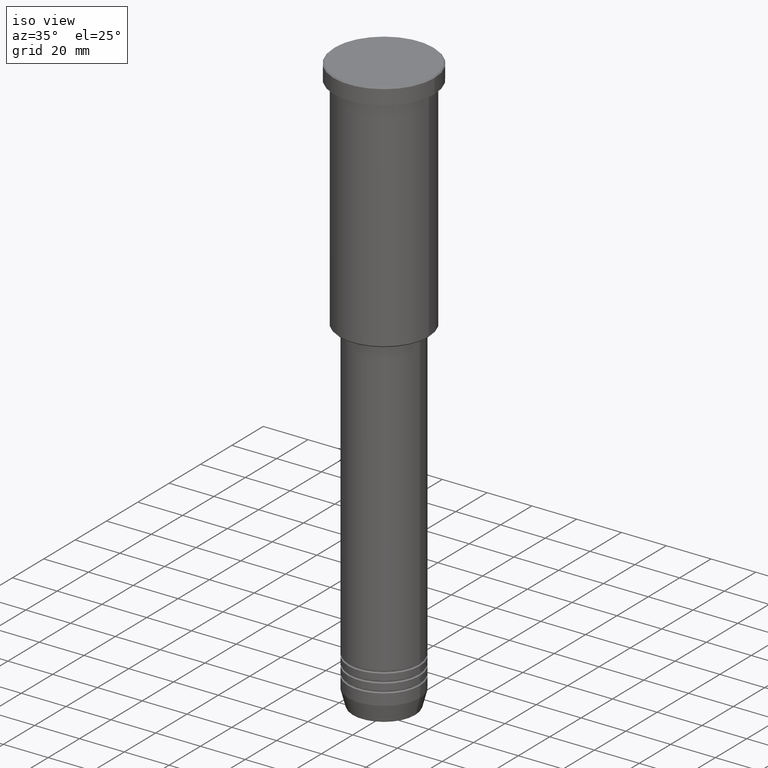
[diagram: clean part render]
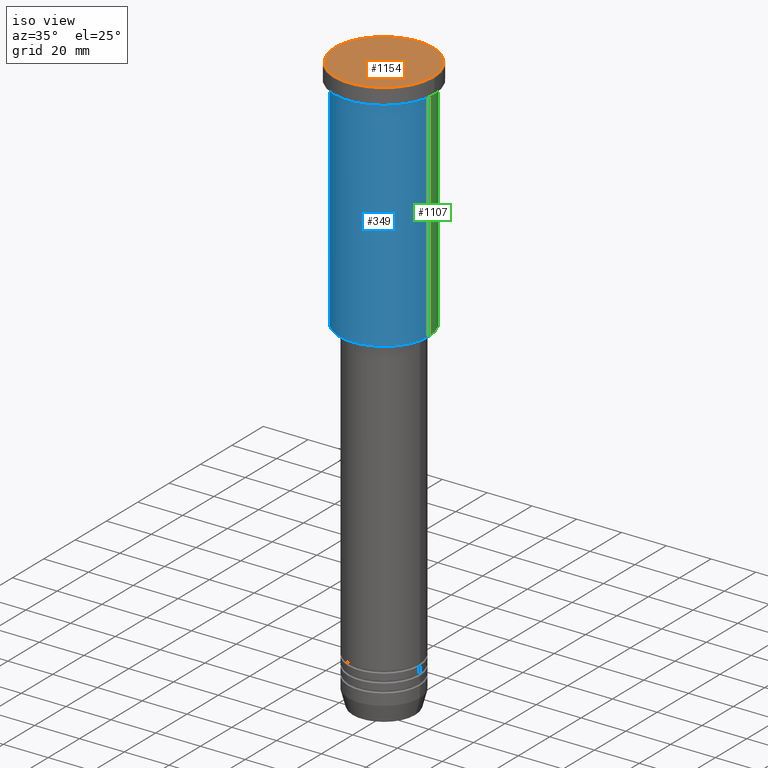
[diagram: same view with three faces highlighted in distinct colors, each labeled with its STEP entity id]
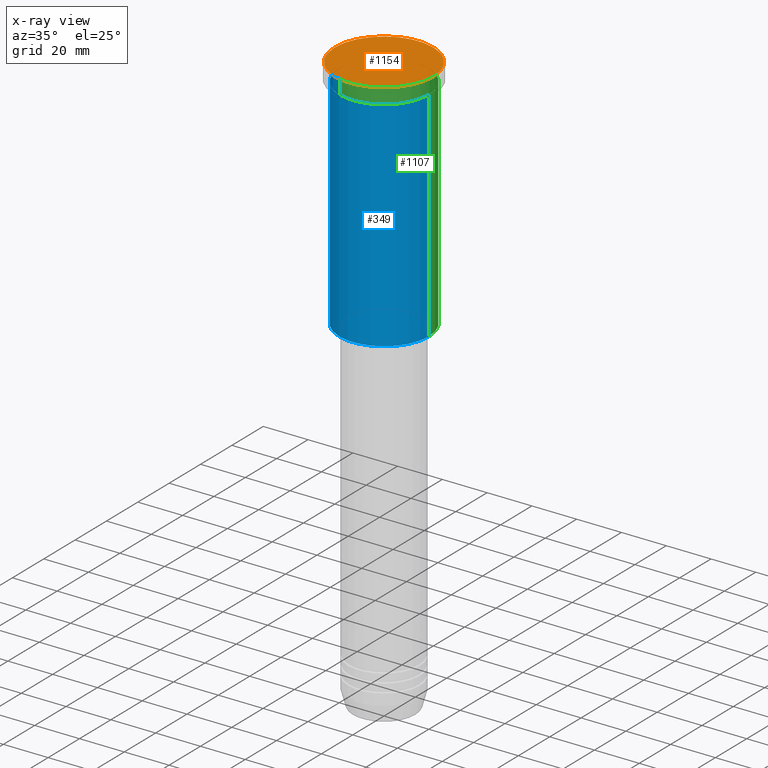
[diagram: x-ray of the same camera — body ghosted, the three highlighted faces saturated]
A machine part, iso view with three faces highlighted in distinct colors.
The next image is the same camera in x-ray (body ghosted, the three faces saturated) — at least one of them is partly hidden behind the body in this view.
Their STEP definitions:

[orange] entity #1154 — the highlighted planar face has unit normal (0, -0, 1).
#1 = CARTESIAN_POINT ( 'NONE',  ( -21.99999999999990763, 0.000000000000000000, 0.000000000000000000 ) ) ;
#5 = EDGE_CURVE ( 'NONE', #1167, #691, #825, .T. ) ;
#35 = CIRCLE ( 'NONE', #168, 21.99999999999990763 ) ;
#168 = AXIS2_PLACEMENT_3D ( 'NONE', #1036, #303, #213 ) ;
#183 = CARTESIAN_POINT ( 'NONE',  ( 0.000000000000000000, 0.000000000000000000, 0.000000000000000000 ) ) ;
#213 = DIRECTION ( 'NONE',  ( 1.000000000000000000, 0.000000000000000000, 0.000000000000000000 ) ) ;
#216 = AXIS2_PLACEMENT_3D ( 'NONE', #183, #353, #998 ) ;
#289 = CARTESIAN_POINT ( 'NONE',  ( 21.99999999999990763, 2.724839128102855074E-15, 0.000000000000000000 ) ) ;
#303 = DIRECTION ( 'NONE',  ( -0.000000000000000000, -0.000000000000000000, 1.000000000000000000 ) ) ;
#353 = DIRECTION ( 'NONE',  ( -0.000000000000000000, -0.000000000000000000, 1.000000000000000000 ) ) ;
#475 = PLANE ( 'NONE',  #629 ) ;
#519 = ORIENTED_EDGE ( 'NONE', *, *, #5, .T. ) ;
#602 = EDGE_LOOP ( 'NONE', ( #519, #765 ) ) ;
#629 = AXIS2_PLACEMENT_3D ( 'NONE', #901, #822, #1015 ) ;
#639 = EDGE_CURVE ( 'NONE', #691, #1167, #35, .T. ) ;
#691 = VERTEX_POINT ( 'NONE', #289 ) ;
#765 = ORIENTED_EDGE ( 'NONE', *, *, #639, .T. ) ;
#822 = DIRECTION ( 'NONE',  ( 0.000000000000000000, -0.000000000000000000, 1.000000000000000000 ) ) ;
#825 = CIRCLE ( 'NONE', #216, 21.99999999999990763 ) ;
#901 = CARTESIAN_POINT ( 'NONE',  ( 0.000000000000000000, 0.000000000000000000, 0.000000000000000000 ) ) ;
#912 = FACE_OUTER_BOUND ( 'NONE', #602, .T. ) ;
#998 = DIRECTION ( 'NONE',  ( 1.000000000000000000, 0.000000000000000000, 0.000000000000000000 ) ) ;
#1015 = DIRECTION ( 'NONE',  ( 1.000000000000000000, 0.000000000000000000, 0.000000000000000000 ) ) ;
#1036 = CARTESIAN_POINT ( 'NONE',  ( 0.000000000000000000, 0.000000000000000000, 0.000000000000000000 ) ) ;
#1154 = ADVANCED_FACE ( 'NONE', ( #912 ), #475, .T. ) ;
#1167 = VERTEX_POINT ( 'NONE', #1 ) ;

[blue] entity #349 — the highlighted cylindrical surface (partial cylindrical patch) has radius 20 mm, axis along (-0, -0, 1).
#23 = CARTESIAN_POINT ( 'NONE',  ( 20.00000000000000355, 0.000000000000000000, -105.4999999999999574 ) ) ;
#36 = VECTOR ( 'NONE', #517, 1000.000000000000000 ) ;
#55 = VECTOR ( 'NONE', #1148, 1000.000000000000000 ) ;
#66 = DIRECTION ( 'NONE',  ( -0.000000000000000000, -0.000000000000000000, 1.000000000000000000 ) ) ;
#115 = CARTESIAN_POINT ( 'NONE',  ( 0.000000000000000000, 0.000000000000000000, -7.999999999999994671 ) ) ;
#198 = AXIS2_PLACEMENT_3D ( 'NONE', #750, #1113, #295 ) ;
#249 = CARTESIAN_POINT ( 'NONE',  ( 0.000000000000000000, 0.000000000000000000, 0.000000000000000000 ) ) ;
#251 = VERTEX_POINT ( 'NONE', #908 ) ;
#295 = DIRECTION ( 'NONE',  ( -1.000000000000000000, 0.000000000000000000, 0.000000000000000000 ) ) ;
#329 = LINE ( 'NONE', #696, #55 ) ;
#343 = EDGE_CURVE ( 'NONE', #251, #949, #483, .T. ) ;
#349 = ADVANCED_FACE ( 'NONE', ( #657 ), #427, .T. ) ;
#362 = VERTEX_POINT ( 'NONE', #1160 ) ;
#427 = CYLINDRICAL_SURFACE ( 'NONE', #700, 20.00000000000000355 ) ;
#460 = CARTESIAN_POINT ( 'NONE',  ( -20.00000000000000000, 2.449293598294706513E-15, -7.999999999999994671 ) ) ;
#483 = CIRCLE ( 'NONE', #198, 20.00000000000000355 ) ;
#484 = DIRECTION ( 'NONE',  ( 1.000000000000000000, 0.000000000000000000, 0.000000000000000000 ) ) ;
#502 = VERTEX_POINT ( 'NONE', #460 ) ;
#517 = DIRECTION ( 'NONE',  ( -0.000000000000000000, -0.000000000000000000, 1.000000000000000000 ) ) ;
#528 = CIRCLE ( 'NONE', #763, 20.00000000000000000 ) ;
#535 = LINE ( 'NONE', #1175, #36 ) ;
#625 = ORIENTED_EDGE ( 'NONE', *, *, #1041, .T. ) ;
#657 = FACE_OUTER_BOUND ( 'NONE', #1104, .T. ) ;
#667 = ORIENTED_EDGE ( 'NONE', *, *, #343, .T. ) ;
#696 = CARTESIAN_POINT ( 'NONE',  ( -20.00000000000000355, 2.449293598294706907E-15, 0.000000000000000000 ) ) ;
#700 = AXIS2_PLACEMENT_3D ( 'NONE', #249, #66, #1073 ) ;
#750 = CARTESIAN_POINT ( 'NONE',  ( 0.000000000000000000, 0.000000000000000000, -105.4999999999999574 ) ) ;
#762 = DIRECTION ( 'NONE',  ( -0.000000000000000000, -0.000000000000000000, 1.000000000000000000 ) ) ;
#763 = AXIS2_PLACEMENT_3D ( 'NONE', #115, #762, #484 ) ;
#784 = EDGE_CURVE ( 'NONE', #251, #502, #329, .T. ) ;
#908 = CARTESIAN_POINT ( 'NONE',  ( -20.00000000000000355, 2.449293598294706907E-15, -105.4999999999999574 ) ) ;
#949 = VERTEX_POINT ( 'NONE', #23 ) ;
#963 = ORIENTED_EDGE ( 'NONE', *, *, #784, .F. ) ;
#1005 = EDGE_CURVE ( 'NONE', #502, #362, #528, .T. ) ;
#1041 = EDGE_CURVE ( 'NONE', #949, #362, #535, .T. ) ;
#1073 = DIRECTION ( 'NONE',  ( 1.000000000000000000, 0.000000000000000000, 0.000000000000000000 ) ) ;
#1104 = EDGE_LOOP ( 'NONE', ( #963, #667, #625, #1181 ) ) ;
#1113 = DIRECTION ( 'NONE',  ( -0.000000000000000000, -0.000000000000000000, 1.000000000000000000 ) ) ;
#1148 = DIRECTION ( 'NONE',  ( -0.000000000000000000, -0.000000000000000000, 1.000000000000000000 ) ) ;
#1160 = CARTESIAN_POINT ( 'NONE',  ( 20.00000000000000000, 0.000000000000000000, -7.999999999999994671 ) ) ;
#1175 = CARTESIAN_POINT ( 'NONE',  ( 20.00000000000000355, 0.000000000000000000, 0.000000000000000000 ) ) ;
#1181 = ORIENTED_EDGE ( 'NONE', *, *, #1005, .F. ) ;

[green] entity #1107 — the highlighted cylindrical surface (partial cylindrical patch) has radius 20 mm, axis along (-0, -0, 1).
#23 = CARTESIAN_POINT ( 'NONE',  ( 20.00000000000000355, 0.000000000000000000, -105.4999999999999574 ) ) ;
#36 = VECTOR ( 'NONE', #517, 1000.000000000000000 ) ;
#55 = VECTOR ( 'NONE', #1148, 1000.000000000000000 ) ;
#68 = EDGE_CURVE ( 'NONE', #949, #251, #81, .T. ) ;
#81 = CIRCLE ( 'NONE', #757, 20.00000000000000355 ) ;
#153 = DIRECTION ( 'NONE',  ( 1.000000000000000000, 0.000000000000000000, 0.000000000000000000 ) ) ;
#251 = VERTEX_POINT ( 'NONE', #908 ) ;
#329 = LINE ( 'NONE', #696, #55 ) ;
#362 = VERTEX_POINT ( 'NONE', #1160 ) ;
#433 = ORIENTED_EDGE ( 'NONE', *, *, #1041, .F. ) ;
#460 = CARTESIAN_POINT ( 'NONE',  ( -20.00000000000000000, 2.449293598294706513E-15, -7.999999999999994671 ) ) ;
#480 = DIRECTION ( 'NONE',  ( -0.000000000000000000, -0.000000000000000000, 1.000000000000000000 ) ) ;
#499 = CYLINDRICAL_SURFACE ( 'NONE', #888, 20.00000000000000355 ) ;
#502 = VERTEX_POINT ( 'NONE', #460 ) ;
#517 = DIRECTION ( 'NONE',  ( -0.000000000000000000, -0.000000000000000000, 1.000000000000000000 ) ) ;
#535 = LINE ( 'NONE', #1175, #36 ) ;
#561 = EDGE_LOOP ( 'NONE', ( #894, #860, #840, #433 ) ) ;
#600 = CARTESIAN_POINT ( 'NONE',  ( 0.000000000000000000, 0.000000000000000000, -105.4999999999999574 ) ) ;
#666 = DIRECTION ( 'NONE',  ( -1.000000000000000000, 0.000000000000000000, 0.000000000000000000 ) ) ;
#696 = CARTESIAN_POINT ( 'NONE',  ( -20.00000000000000355, 2.449293598294706907E-15, 0.000000000000000000 ) ) ;
#722 = CARTESIAN_POINT ( 'NONE',  ( 0.000000000000000000, 0.000000000000000000, -7.999999999999994671 ) ) ;
#757 = AXIS2_PLACEMENT_3D ( 'NONE', #600, #480, #666 ) ;
#784 = EDGE_CURVE ( 'NONE', #251, #502, #329, .T. ) ;
#840 = ORIENTED_EDGE ( 'NONE', *, *, #1072, .F. ) ;
#860 = ORIENTED_EDGE ( 'NONE', *, *, #784, .T. ) ;
#871 = AXIS2_PLACEMENT_3D ( 'NONE', #722, #947, #874 ) ;
#874 = DIRECTION ( 'NONE',  ( 1.000000000000000000, 0.000000000000000000, 0.000000000000000000 ) ) ;
#888 = AXIS2_PLACEMENT_3D ( 'NONE', #1051, #968, #153 ) ;
#894 = ORIENTED_EDGE ( 'NONE', *, *, #68, .T. ) ;
#908 = CARTESIAN_POINT ( 'NONE',  ( -20.00000000000000355, 2.449293598294706907E-15, -105.4999999999999574 ) ) ;
#947 = DIRECTION ( 'NONE',  ( -0.000000000000000000, -0.000000000000000000, 1.000000000000000000 ) ) ;
#949 = VERTEX_POINT ( 'NONE', #23 ) ;
#968 = DIRECTION ( 'NONE',  ( -0.000000000000000000, -0.000000000000000000, 1.000000000000000000 ) ) ;
#1041 = EDGE_CURVE ( 'NONE', #949, #362, #535, .T. ) ;
#1051 = CARTESIAN_POINT ( 'NONE',  ( 0.000000000000000000, 0.000000000000000000, 0.000000000000000000 ) ) ;
#1067 = CIRCLE ( 'NONE', #871, 20.00000000000000000 ) ;
#1072 = EDGE_CURVE ( 'NONE', #362, #502, #1067, .T. ) ;
#1107 = ADVANCED_FACE ( 'NONE', ( #1138 ), #499, .T. ) ;
#1138 = FACE_OUTER_BOUND ( 'NONE', #561, .T. ) ;
#1148 = DIRECTION ( 'NONE',  ( -0.000000000000000000, -0.000000000000000000, 1.000000000000000000 ) ) ;
#1160 = CARTESIAN_POINT ( 'NONE',  ( 20.00000000000000000, 0.000000000000000000, -7.999999999999994671 ) ) ;
#1175 = CARTESIAN_POINT ( 'NONE',  ( 20.00000000000000355, 0.000000000000000000, 0.000000000000000000 ) ) ;